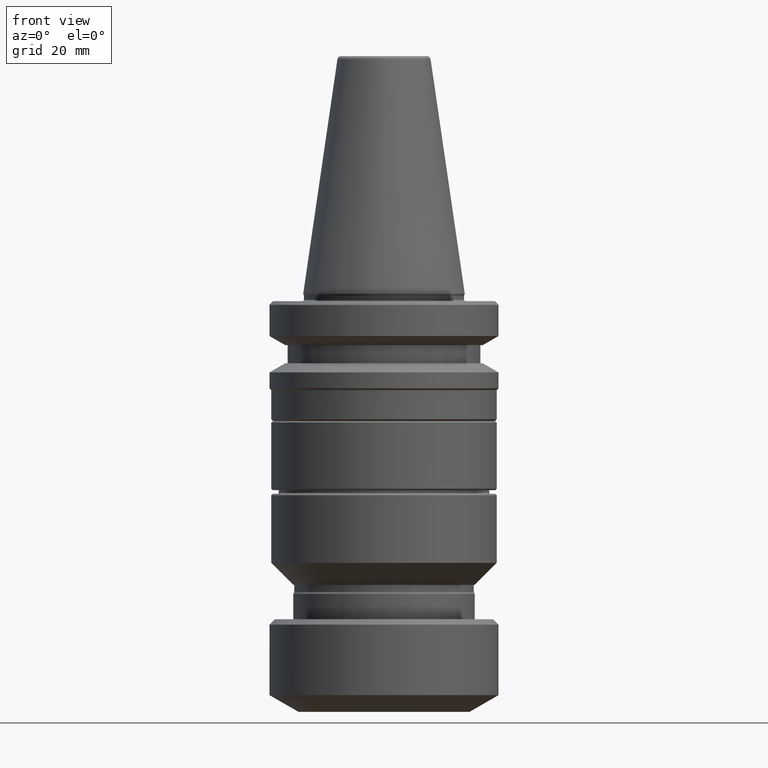
[diagram: clean part render]
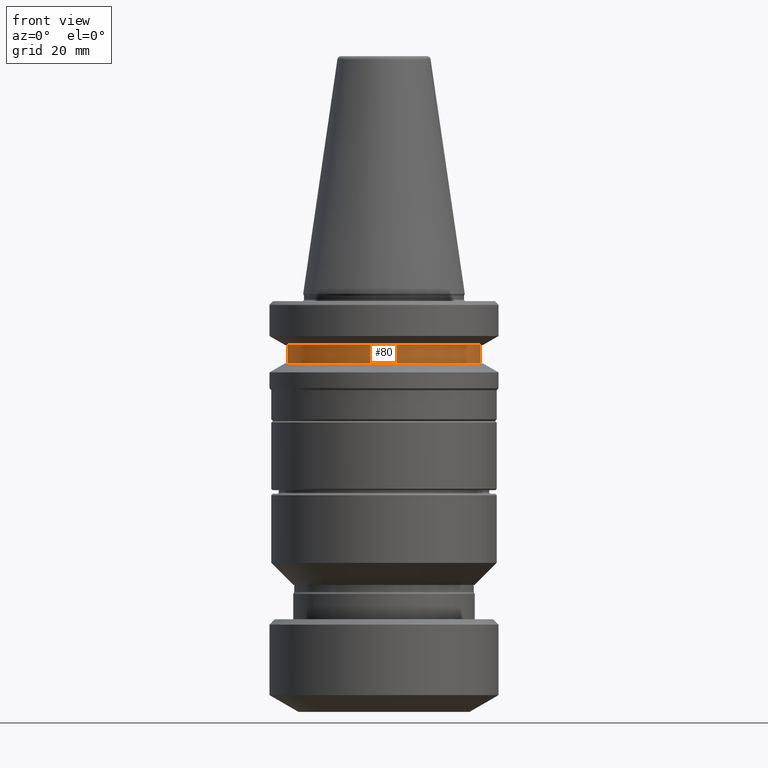
[diagram: same view with one face highlighted and labeled with its STEP entity id]
A machine part, front view. The second image highlights one B-rep face of the part: STEP entity #80.
In plain terms, the highlighted cylindrical surface (partial cylindrical patch) has radius 26.5 mm, axis along (-0, -0, 1).
Its self-contained STEP definition (entity closure, byte-faithful):
#18 = CARTESIAN_POINT ( 'NONE',  ( 26.50000000000000000, 0.0000000000000000000, -19.10000000000000500 ) ) ;
#40 = VERTEX_POINT ( 'NONE', #528 ) ;
#78 = CARTESIAN_POINT ( 'NONE',  ( -26.50000000000000000, 3.245314017740485800E-015, 69.75694866325665100 ) ) ;
#80 = ADVANCED_FACE ( 'NONE', ( #1286 ), #1265, .T. ) ;
#109 = AXIS2_PLACEMENT_3D ( 'NONE', #1692, #1395, #331 ) ;
#280 = CARTESIAN_POINT ( 'NONE',  ( 26.50000000000000000, 0.0000000000000000000, 69.75694866325665100 ) ) ;
#288 = DIRECTION ( 'NONE',  ( -0.0000000000000000000, -0.0000000000000000000, 1.000000000000000000 ) ) ;
#331 = DIRECTION ( 'NONE',  ( 1.000000000000000000, 0.0000000000000000000, 0.0000000000000000000 ) ) ;
#436 = DIRECTION ( 'NONE',  ( 1.000000000000000000, 0.0000000000000000000, 0.0000000000000000000 ) ) ;
#488 = DIRECTION ( 'NONE',  ( -0.0000000000000000000, -0.0000000000000000000, 1.000000000000000000 ) ) ;
#517 = EDGE_LOOP ( 'NONE', ( #1204, #590, #1738, #1909 ) ) ;
#528 = CARTESIAN_POINT ( 'NONE',  ( 26.50000000000000000, 0.0000000000000000000, -14.10000000000000100 ) ) ;
#590 = ORIENTED_EDGE ( 'NONE', *, *, #1339, .T. ) ;
#591 = CIRCLE ( 'NONE', #109, 26.50000000000000000 ) ;
#612 = EDGE_CURVE ( 'NONE', #1328, #40, #591, .T. ) ;
#765 = AXIS2_PLACEMENT_3D ( 'NONE', #1202, #288, #1336 ) ;
#879 = CARTESIAN_POINT ( 'NONE',  ( -26.50000000000000000, 3.245314017740485800E-015, -14.10000000000000100 ) ) ;
#1061 = VECTOR ( 'NONE', #488, 1000.000000000000000 ) ;
#1065 = CARTESIAN_POINT ( 'NONE',  ( 0.0000000000000000000, 0.0000000000000000000, 69.75694866325665100 ) ) ;
#1113 = VERTEX_POINT ( 'NONE', #1671 ) ;
#1202 = CARTESIAN_POINT ( 'NONE',  ( 0.0000000000000000000, 0.0000000000000000000, -19.10000000000000500 ) ) ;
#1204 = ORIENTED_EDGE ( 'NONE', *, *, #1448, .F. ) ;
#1221 = DIRECTION ( 'NONE',  ( -0.0000000000000000000, -0.0000000000000000000, 1.000000000000000000 ) ) ;
#1265 = CYLINDRICAL_SURFACE ( 'NONE', #1822, 26.50000000000000000 ) ;
#1286 = FACE_OUTER_BOUND ( 'NONE', #517, .T. ) ;
#1328 = VERTEX_POINT ( 'NONE', #879 ) ;
#1336 = DIRECTION ( 'NONE',  ( 1.000000000000000000, 0.0000000000000000000, 0.0000000000000000000 ) ) ;
#1339 = EDGE_CURVE ( 'NONE', #1113, #1754, #1772, .T. ) ;
#1395 = DIRECTION ( 'NONE',  ( -0.0000000000000000000, -0.0000000000000000000, 1.000000000000000000 ) ) ;
#1448 = EDGE_CURVE ( 'NONE', #1113, #1328, #1646, .T. ) ;
#1592 = VECTOR ( 'NONE', #1795, 1000.000000000000000 ) ;
#1623 = EDGE_CURVE ( 'NONE', #1754, #40, #1918, .T. ) ;
#1646 = LINE ( 'NONE', #78, #1061 ) ;
#1671 = CARTESIAN_POINT ( 'NONE',  ( -26.50000000000000000, 3.245314017740485800E-015, -19.10000000000000500 ) ) ;
#1692 = CARTESIAN_POINT ( 'NONE',  ( 0.0000000000000000000, 0.0000000000000000000, -14.10000000000000100 ) ) ;
#1738 = ORIENTED_EDGE ( 'NONE', *, *, #1623, .T. ) ;
#1754 = VERTEX_POINT ( 'NONE', #18 ) ;
#1772 = CIRCLE ( 'NONE', #765, 26.50000000000000000 ) ;
#1795 = DIRECTION ( 'NONE',  ( -0.0000000000000000000, -0.0000000000000000000, 1.000000000000000000 ) ) ;
#1822 = AXIS2_PLACEMENT_3D ( 'NONE', #1065, #1221, #436 ) ;
#1909 = ORIENTED_EDGE ( 'NONE', *, *, #612, .F. ) ;
#1918 = LINE ( 'NONE', #280, #1592 ) ;